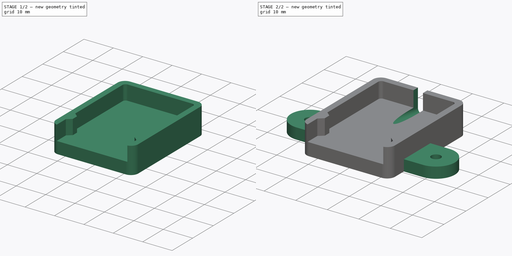
[diagram: build sequence overview — one tinted view per stage of 2, left to right]
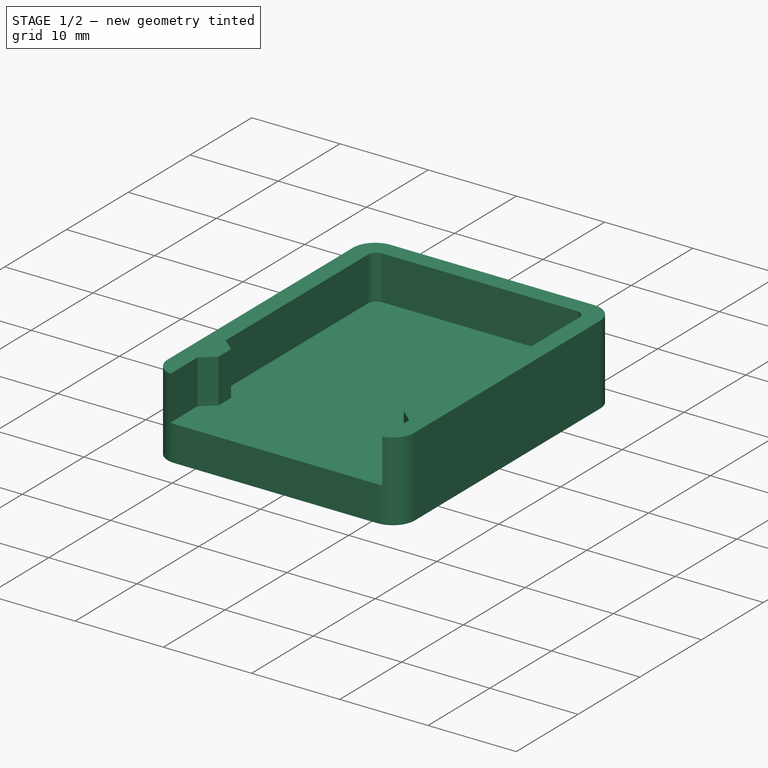
[diagram: stage 1 of 2 — iso view after this stage's code; geometry added in this stage tinted green]
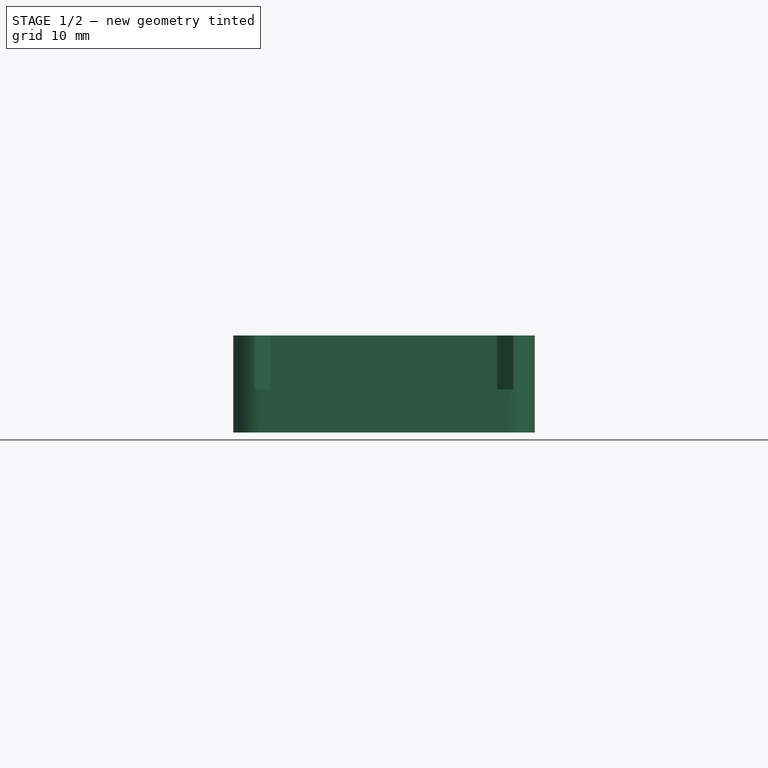
[diagram: stage 1 of 2 — front view after this stage's code; geometry added in this stage tinted green]
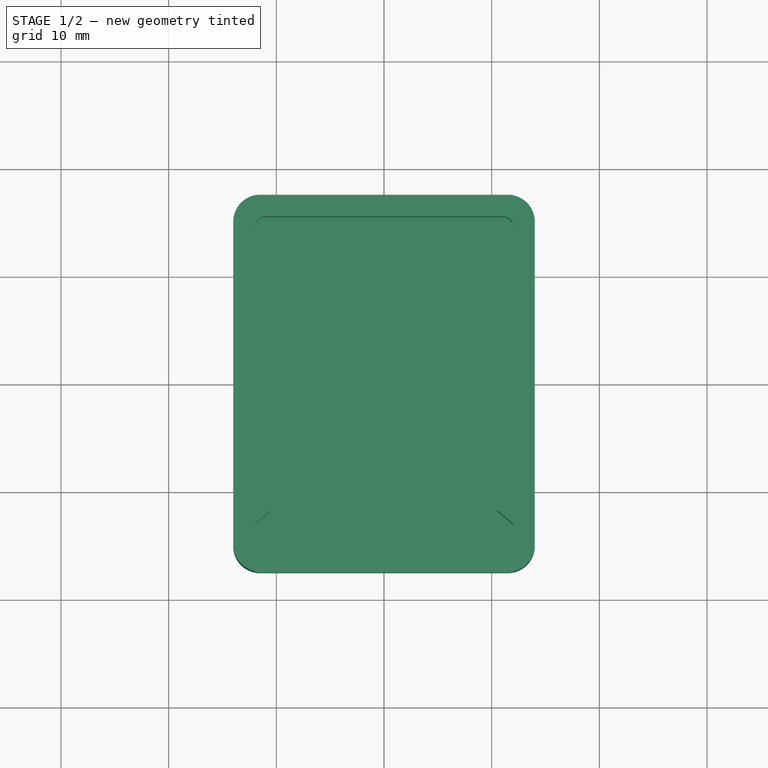
[diagram: stage 1 of 2 — top view after this stage's code; geometry added in this stage tinted green]
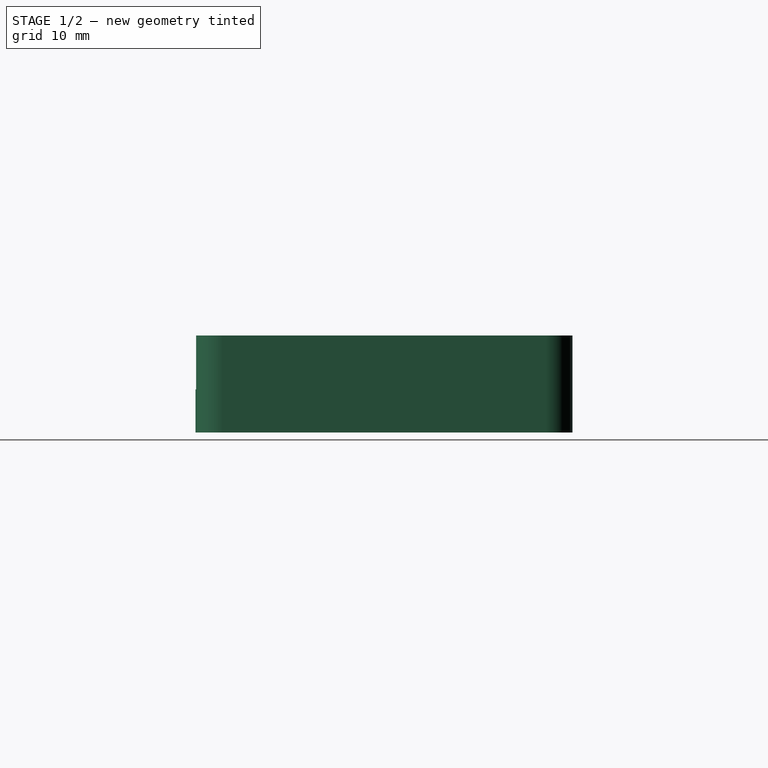
[diagram: stage 1 of 2 — right view after this stage's code; geometry added in this stage tinted green]
FCSTD DOCUMENT  (FreeCAD 0.18.4R)
Label: soil-sensor
License: All rights reserved
LicenseURL: http://en.wikipedia.org/wiki/All_rights_reserved
objects: Sketcher::SketchObject×4, PartDesign::Pad×2, PartDesign::Pocket×2, PartDesign::Body×1
note: 13 computed .brp shape members not serialized (recipe doc carries the construction recipe); baked Part::Feature solids carry a one-line shape summary decoded from their .brp

FEATURE [Sketcher::SketchObject] Sketch
  MapMode = 5
  Support = -> [XY_Plane]
  sketch-geometry (8):
    g0: LineSegment StartX=-11.5 StartY=17.5 StartZ=0 EndX=11.5 EndY=17.5 EndZ=0
    g1: LineSegment StartX=14 StartY=15 StartZ=0 EndX=14 EndY=-15 EndZ=0
    g2: LineSegment StartX=11.5 StartY=-17.5 StartZ=0 EndX=-11.5 EndY=-17.5 EndZ=0
    g3: LineSegment StartX=-14 StartY=-15 StartZ=0 EndX=-14 EndY=15 EndZ=0
    g4: ArcOfCircle CenterX=-11.5 CenterY=15 CenterZ=0 NormalX=0 NormalY=0 NormalZ=1 AngleXU=0 Radius=2.5 StartAngle=1.5708 EndAngle=3.14159
    g5: ArcOfCircle CenterX=11.5 CenterY=15 CenterZ=0 NormalX=0 NormalY=0 NormalZ=1 AngleXU=0 Radius=2.5 StartAngle=0 EndAngle=1.5708
    g6: ArcOfCircle CenterX=11.5 CenterY=-15 CenterZ=0 NormalX=0 NormalY=0 NormalZ=1 AngleXU=0 Radius=2.5 StartAngle=4.71239 EndAngle=6.28319
    g7: ArcOfCircle CenterX=-11.5 CenterY=-15 CenterZ=0 NormalX=0 NormalY=0 NormalZ=1 AngleXU=0 Radius=2.5 StartAngle=3.14159 EndAngle=4.71239
  constraints (19):
    c: Horizontal(g0)
    c: Horizontal(g2)
    c: Vertical(g1)
    c: Vertical(g3)
    c: Tangent(g3,g4) = 1.5708
    c: Tangent(g0,g4) = 1.5708
    c: Tangent(g0,g5) = 1.5708
    c: Tangent(g1,g5) = 1.5708
    c: Tangent(g1,g6) = 1.5708
    c: Tangent(g2,g6) = 1.5708
    c: Tangent(g2,g7) = 1.5708
    c: Tangent(g3,g7) = 1.5708
    c: Equal(g1,g3)
    c: Equal(g0,g2)
    c: Equal(g4,g5)
    c: Symmetric(g4,g6,g-1)
    c: DistanceX(g3,g1) = 28
    c: DistanceY(g2,g0) = 35
    c: Radius(g5) = 2.5
FEATURE [PartDesign::Pad] Pad
  Length = 9
  Length2 = 100
  Profile = -> Sketch
  Type = 0
FEATURE [Sketcher::SketchObject] Sketch001
  ExternalGeometry = -> [Pad]
  MapMode = 5
  Placement = pos=(0,0,9) rot=(0,0,1;0rad)
  Support = -> [Pad]
  sketch-geometry (14):
    g0: LineSegment StartX=-11 StartY=15.5 StartZ=0 EndX=11 EndY=15.5 EndZ=0
    g1: ArcOfCircle CenterX=-11 CenterY=14.5 CenterZ=0 NormalX=0 NormalY=0 NormalZ=1 AngleXU=0 Radius=1 StartAngle=1.5708 EndAngle=3.14159
    g2: ArcOfCircle CenterX=11 CenterY=14.5 CenterZ=0 NormalX=0 NormalY=0 NormalZ=1 AngleXU=0 Radius=1 StartAngle=4e-16 EndAngle=1.5708
    g3: LineSegment StartX=-12 StartY=-18.05 StartZ=0 EndX=12 EndY=-18.05 EndZ=0
    g4: LineSegment StartX=-12 StartY=-8.5 StartZ=0 EndX=-10.5 EndY=-9.76 EndZ=0
    g5: LineSegment StartX=-10.5 StartY=-9.76 StartZ=0 EndX=-10.5 EndY=-11.79 EndZ=0
    g6: LineSegment StartX=-10.5 StartY=-11.79 StartZ=0 EndX=-12 EndY=-13.05 EndZ=0
    g7: LineSegment StartX=-12 StartY=14.5 StartZ=0 EndX=-12 EndY=-8.5 EndZ=0
    g8: LineSegment StartX=-12 StartY=-13.05 StartZ=0 EndX=-12 EndY=-18.05 EndZ=0
    g9: LineSegment StartX=12 StartY=14.5 StartZ=0 EndX=12 EndY=-8.5 EndZ=0
    g10: LineSegment StartX=12 StartY=-8.5 StartZ=0 EndX=10.5 EndY=-9.76 EndZ=0
    g11: LineSegment StartX=10.5 StartY=-11.79 StartZ=0 EndX=12 EndY=-13.05 EndZ=0
    g12: LineSegment StartX=12 StartY=-13.05 StartZ=0 EndX=12 EndY=-18.05 EndZ=0
    g13: LineSegment StartX=10.5 StartY=-9.76 StartZ=0 EndX=10.5 EndY=-11.79 EndZ=0
  constraints (41):
    c: Horizontal(g0)
    c: Tangent(g0,g1) = 1.5708
    c: Tangent(g0,g2) = 1.5708
    c: DistanceY(g0,g-5) = 2
    c: Horizontal(g3)
    c: Radius(g2) = 1
    c: Coincident(g4,g5)
    c: Coincident(g5,g6)
    c: Vertical(g5)
    c: Coincident(g7,g1)
    c: Coincident(g7,g4)
    c: Vertical(g7)
    c: Coincident(g8,g6)
    c: Coincident(g8,g3)
    c: Vertical(g8)
    c: Tangent(g2,g9) = 1.5708
    c: Coincident(g9,g10)
    c: Coincident(g11,g12)
    c: Coincident(g12,g3)
    c: Vertical(g12)
    c: Coincident(g13,g10)
    c: Coincident(g13,g11)
    c: Vertical(g13)
    c: Vertical(g9)
    c: DistanceY(g5,g5) = 2.03
    c: Equal(g13,g5)
    c: DistanceY(g6,g4) = 4.55
    c: DistanceY(g11,g9) = 4.55
    c: Vertical(g11,g9)
    c: Vertical(g6,g4)
    c: DistanceX(g-4,g1) = 2
    c: DistanceX(g2,g-3) = 2
    c: DistanceX(g4,g4) = 1.5
    c: DistanceY(g4,g4) = 1.26
    c: DistanceX(g10,g9) = 1.5
    c: DistanceY(g10,g9) = 1.26
    c: Horizontal(g10,g4)
    c: DistanceY(g9,g9) = 23
    c: DistanceY(g12,g12) = 5
    c: Radius(g1) = 1
    c: Horizontal(g1,g1)
FEATURE [PartDesign::Pocket] Pocket
  BaseFeature = -> Pad
  Length = 5
  Length2 = 100
  Profile = -> Sketch001
  Type = 0
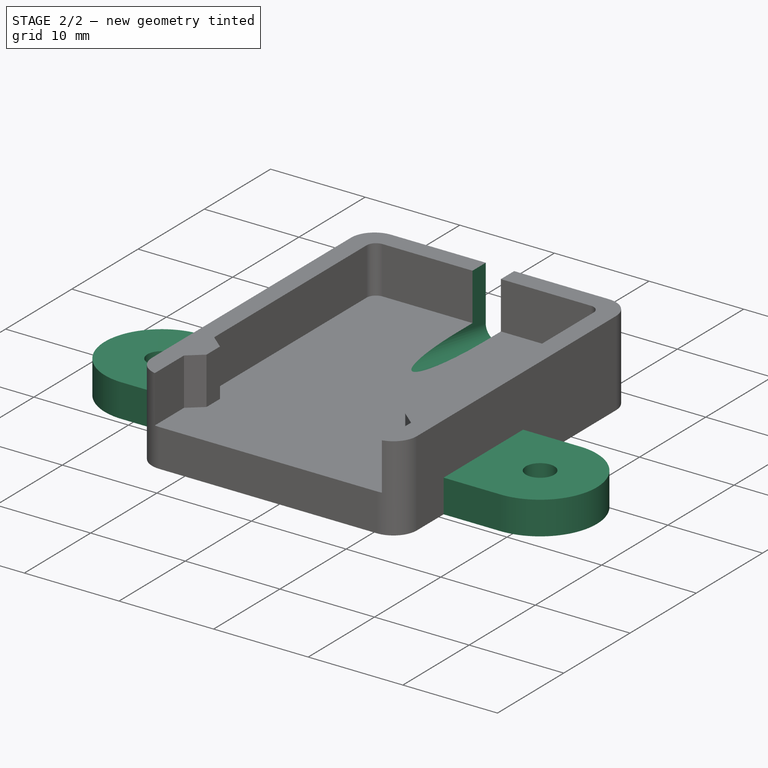
[diagram: stage 2 of 2 — iso view after this stage's code; geometry added in this stage tinted green]
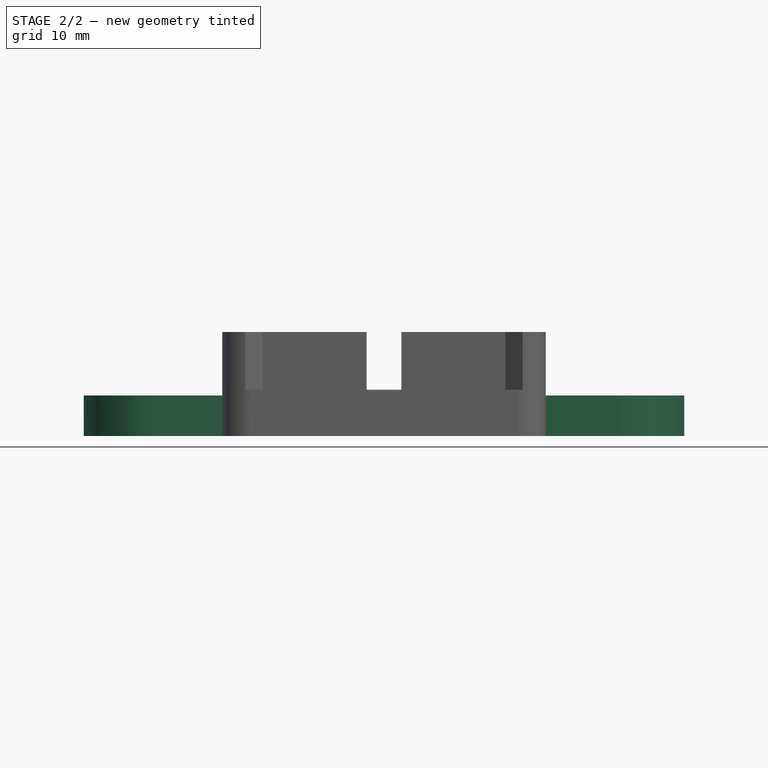
[diagram: stage 2 of 2 — front view after this stage's code; geometry added in this stage tinted green]
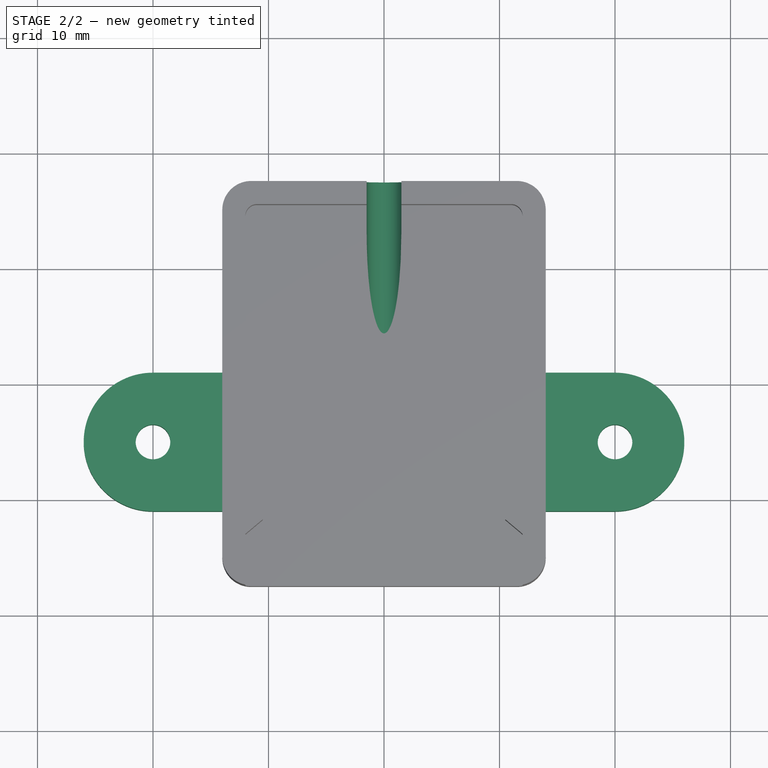
[diagram: stage 2 of 2 — top view after this stage's code; geometry added in this stage tinted green]
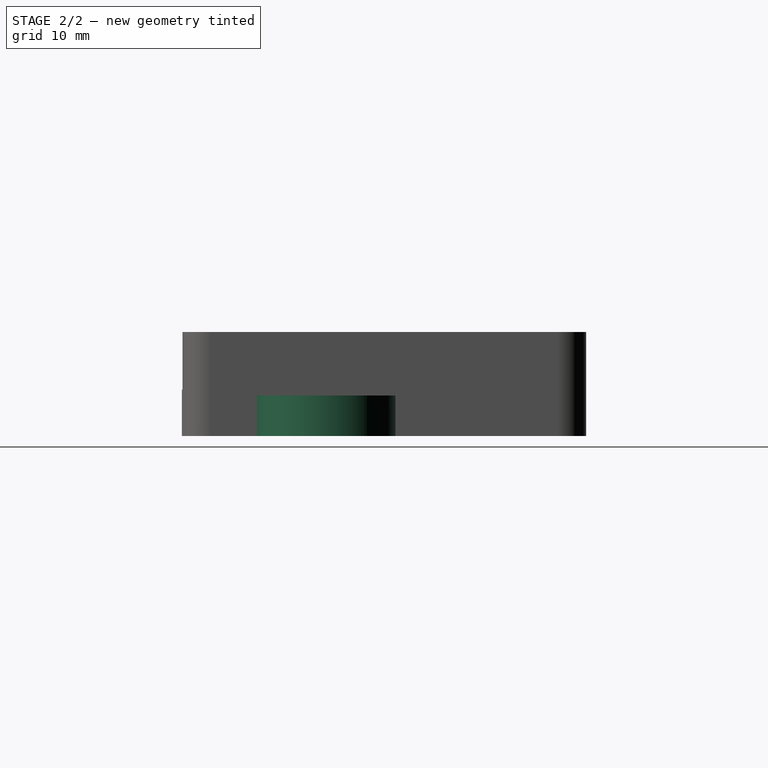
[diagram: stage 2 of 2 — right view after this stage's code; geometry added in this stage tinted green]
FEATURE [Sketcher::SketchObject] Sketch002
  AttachmentOffset = pos=(0,0,0) rot=(1,0,0;0.174533rad)
  ExternalGeometry = -> [Pocket]
  MapMode = 5
  Placement = pos=(0,17.5,0) rot=(0,0.766044,0.642788;3.14159rad)
  Support = -> [Pocket]
  sketch-geometry (4):
    g0: ArcOfCircle CenterX=0 CenterY=3.16327 CenterZ=0 NormalX=0 NormalY=0 NormalZ=1 AngleXU=0 Radius=1.5 StartAngle=3.14159 EndAngle=6.28319
    g1: LineSegment StartX=-1.5 StartY=8.86327 StartZ=0 EndX=-1.5 EndY=3.16327 EndZ=0
    g2: LineSegment StartX=1.5 StartY=8.86327 StartZ=0 EndX=1.5 EndY=3.16327 EndZ=0
    g3: LineSegment StartX=-1.5 StartY=8.86327 StartZ=0 EndX=1.5 EndY=8.86327 EndZ=0
  constraints (11):
    c: Tangent(g1,g0) = -1.5708
    c: Tangent(g2,g0) = 1.5708
    c: Vertical(g1)
    c: PointOnObject(g1,g-3)
    c: PointOnObject(g2,g-3)
    c: PointOnObject(g0,g-2)
    c: Vertical(g2)
    c: Radius(g0) = 1.5
    c: DistanceY(g2,g2) = 5.7
    c: Coincident(g3,g1)
    c: Coincident(g3,g2)
FEATURE [PartDesign::Pocket] Pocket001
  BaseFeature = -> Pocket
  Length = 20
  Length2 = 100
  Profile = -> Sketch002
  Type = 0
FEATURE [Sketcher::SketchObject] Sketch003
  MapMode = 5
  Placement = pos=(0,0,0) rot=(1,0,0;3.14159rad)
  Support = -> [Pocket001]
  sketch-geometry (6):
    g0: ArcOfCircle CenterX=-20 CenterY=5 CenterZ=0 NormalX=0 NormalY=0 NormalZ=1 AngleXU=0 Radius=6 StartAngle=1.5708 EndAngle=4.71239
    g1: ArcOfCircle CenterX=20 CenterY=5 CenterZ=0 NormalX=0 NormalY=0 NormalZ=1 AngleXU=0 Radius=6 StartAngle=4.71239 EndAngle=7.85398
    g2: LineSegment StartX=-20 StartY=-1 StartZ=0 EndX=20 EndY=-1 EndZ=0
    g3: LineSegment StartX=-20 StartY=11 StartZ=0 EndX=20 EndY=11 EndZ=0
    g4: Circle CenterX=-20 CenterY=5 CenterZ=0 NormalX=0 NormalY=0 NormalZ=1 AngleXU=0 Radius=1.5
    g5: Circle CenterX=20 CenterY=5 CenterZ=0 NormalX=0 NormalY=0 NormalZ=1 AngleXU=0 Radius=1.5
  constraints (13):
    c: Tangent(g0,g3) = 1.5708
    c: Tangent(g0,g2) = -1.5708
    c: Tangent(g2,g1) = -1.5708
    c: Tangent(g3,g1) = 1.5708
    c: Horizontal(g2)
    c: Radius(g1) = 6
    c: DistanceY(g1,g-1) = 1
    c: Symmetric(g1,g0,g-2)
    c: Coincident(g4,g0)
    c: Coincident(g5,g1)
    c: Equal(g4,g5)
    c: DistanceX(g3,g3) = 40
    c: Radius(g4) = 1.5
FEATURE [PartDesign::Pad] Pad001
  BaseFeature = -> Pocket001
  Length = 3.5
  Length2 = 100
  Profile = -> Sketch003
  Reversed = true
  Type = 0
FEATURE [PartDesign::Body] Body
  Group = -> [Sketch,Pad,Sketch001,Pocket,Sketch002,Pocket001,Sketch003,Pad001]
  Origin = -> Origin
  Tip = -> Pad001
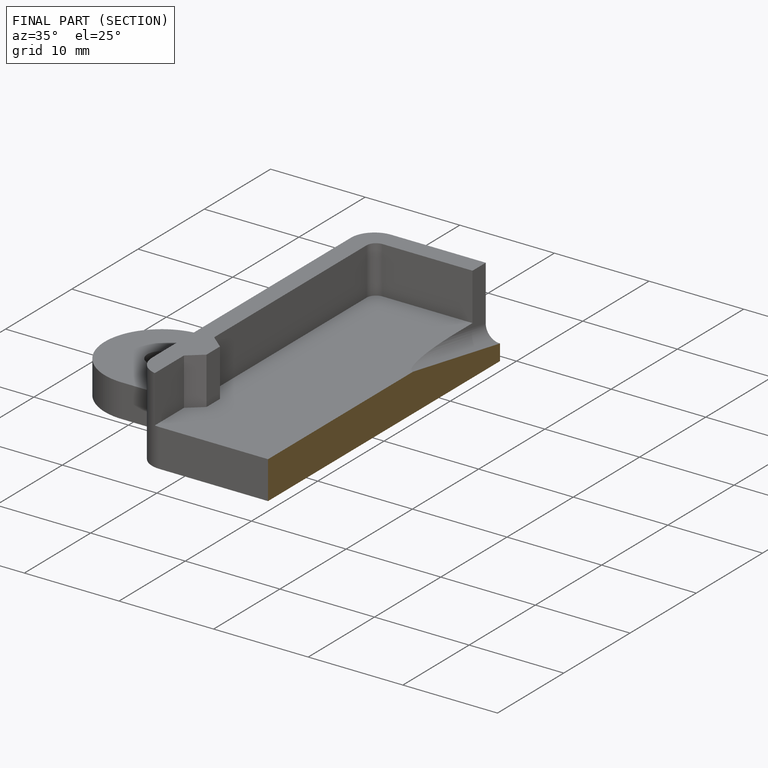
[diagram: finished part — half-section view (interior)]
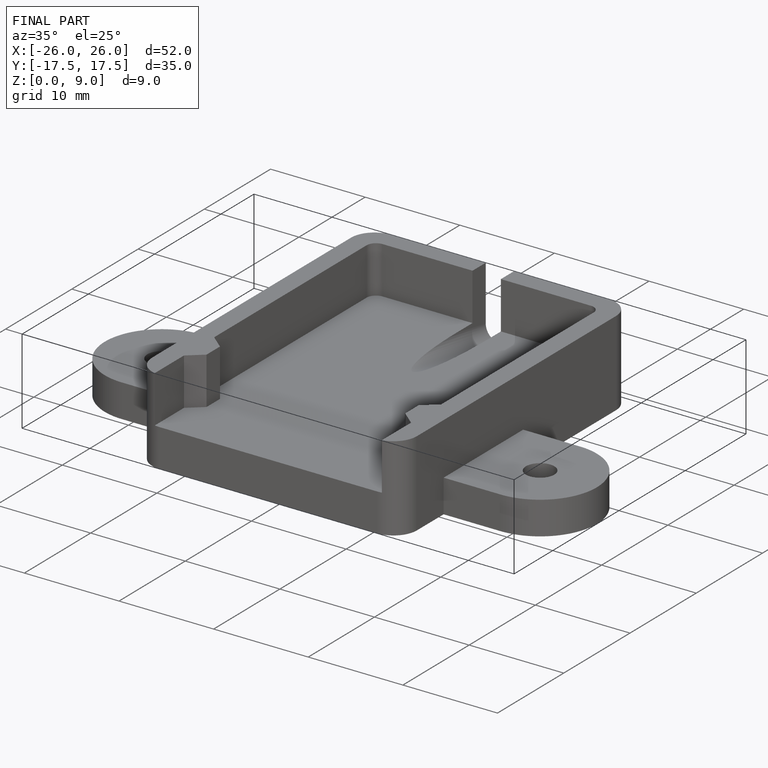
[diagram: finished part — iso view with bounding-box wireframe]
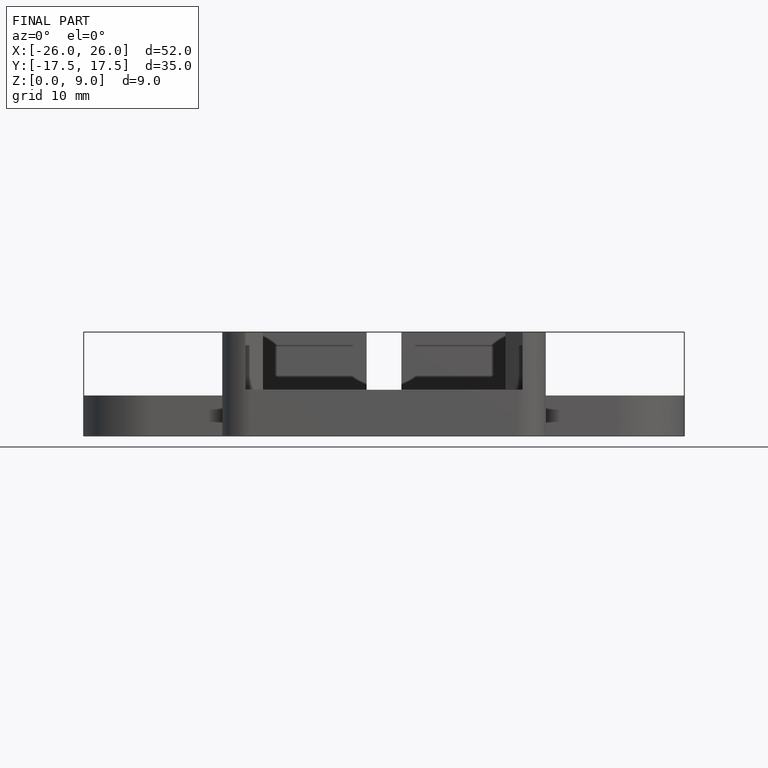
[diagram: finished part — front view with bounding-box wireframe]
